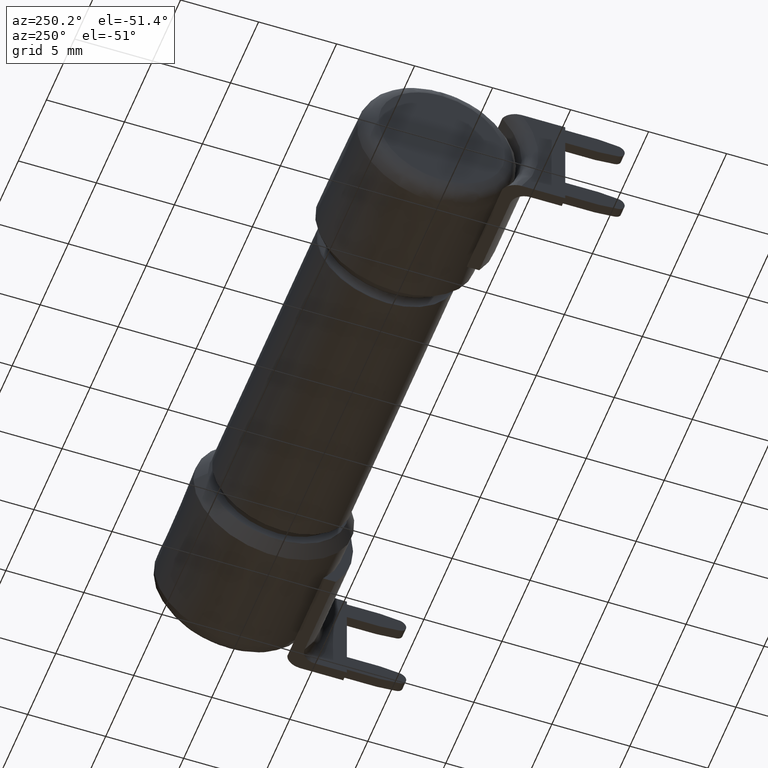
[diagram: clean part render]
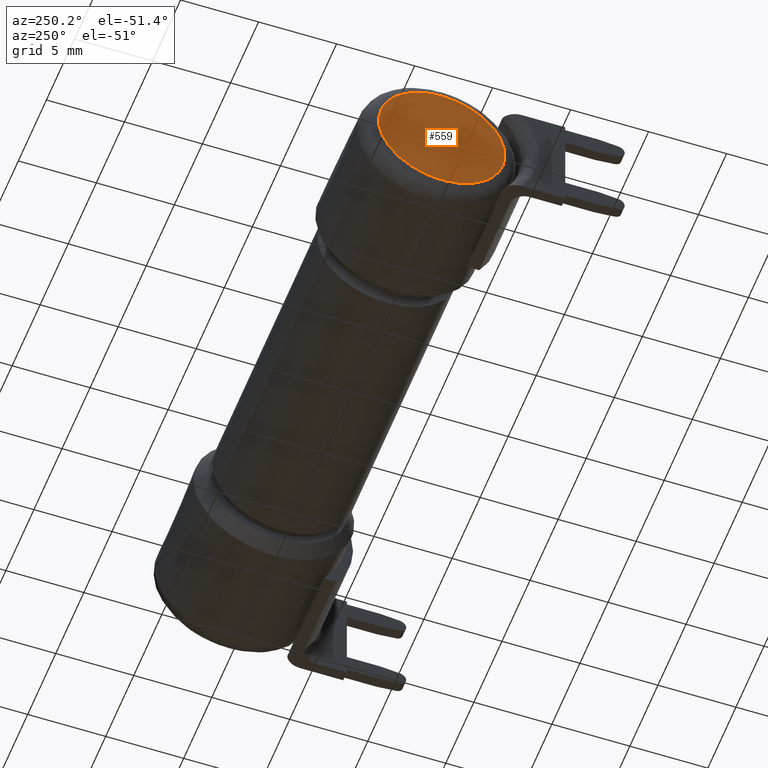
[diagram: same view with one face highlighted and labeled with its STEP entity id]
A machine part, auxiliary view. The second image highlights one B-rep face of the part: STEP entity #559.
In plain terms, the highlighted planar face has unit normal (-1, -0, 0).
Its self-contained STEP definition (entity closure, byte-faithful):
#151 = VERTEX_POINT ( 'NONE', #2405 ) ;
#414 = AXIS2_PLACEMENT_3D ( 'NONE', #850, #841, #830 ) ;
#559 = ADVANCED_FACE ( 'NONE', ( #1886 ), #2109, .T. ) ;
#830 = DIRECTION ( 'NONE',  ( 1.168039247375418900E-016, 0.0000000000000000000, 1.000000000000000000 ) ) ;
#841 = DIRECTION ( 'NONE',  ( -1.000000000000000000, -6.712593418073768800E-017, 1.168039247375418900E-016 ) ) ;
#850 = CARTESIAN_POINT ( 'NONE',  ( -0.03750000000000007500, 4.076669640681005200E-017, -2.315411178660897100E-017 ) ) ;
#1073 = CARTESIAN_POINT ( 'NONE',  ( -0.03749999999999995700, -0.3190065064621769300, -0.1595032532310886000 ) ) ;
#1292 = CARTESIAN_POINT ( 'NONE',  ( -0.03749999999999999900, 0.3190065064621770400, -0.1595032532310885200 ) ) ;
#1472 =( BOUNDED_CURVE ( )  B_SPLINE_CURVE ( 3, ( #2344, #2133, #1073, #2558, #1292, #2753, #1499 ),
 .UNSPECIFIED., .T., .T. ) 
 B_SPLINE_CURVE_WITH_KNOTS ( ( 4, 3, 4 ),
 ( 0.0000000000000000000, 0.5000000000000000000, 1.000000000000000000 ),
 .UNSPECIFIED. ) 
 CURVE ( )  GEOMETRIC_REPRESENTATION_ITEM ( )  RATIONAL_B_SPLINE_CURVE ( ( 1.000000000000000000, 0.3333333333333333700, 0.3333333333333333700, 1.000000000000000000, 0.3333333333333333700, 0.3333333333333333700, 1.000000000000000000 ) ) 
 REPRESENTATION_ITEM ( '' )  );
#1499 = CARTESIAN_POINT ( 'NONE',  ( -0.03749999999999994300, 4.740735331580147100E-017, 0.1595032532310884900 ) ) ;
#1886 = FACE_OUTER_BOUND ( 'NONE', #2660, .T. ) ;
#2109 = PLANE ( 'NONE',  #414 ) ;
#2133 = CARTESIAN_POINT ( 'NONE',  ( -0.03749999999999992200, -0.3190065064621769300, 0.1595032532310884900 ) ) ;
#2344 = CARTESIAN_POINT ( 'NONE',  ( -0.03749999999999994300, 4.740735331580147100E-017, 0.1595032532310884900 ) ) ;
#2405 = CARTESIAN_POINT ( 'NONE',  ( -0.03749999999999994300, 4.740735331580147100E-017, 0.1595032532310884900 ) ) ;
#2495 = EDGE_CURVE ( 'NONE', #151, #151, #1472, .T. ) ;
#2558 = CARTESIAN_POINT ( 'NONE',  ( -0.03749999999999997800, 5.365955435012286400E-017, -0.1595032532310885500 ) ) ;
#2646 = ORIENTED_EDGE ( 'NONE', *, *, #2495, .F. ) ;
#2660 = EDGE_LOOP ( 'NONE', ( #2646 ) ) ;
#2753 = CARTESIAN_POINT ( 'NONE',  ( -0.03749999999999996400, 0.3190065064621770400, 0.1595032532310884900 ) ) ;